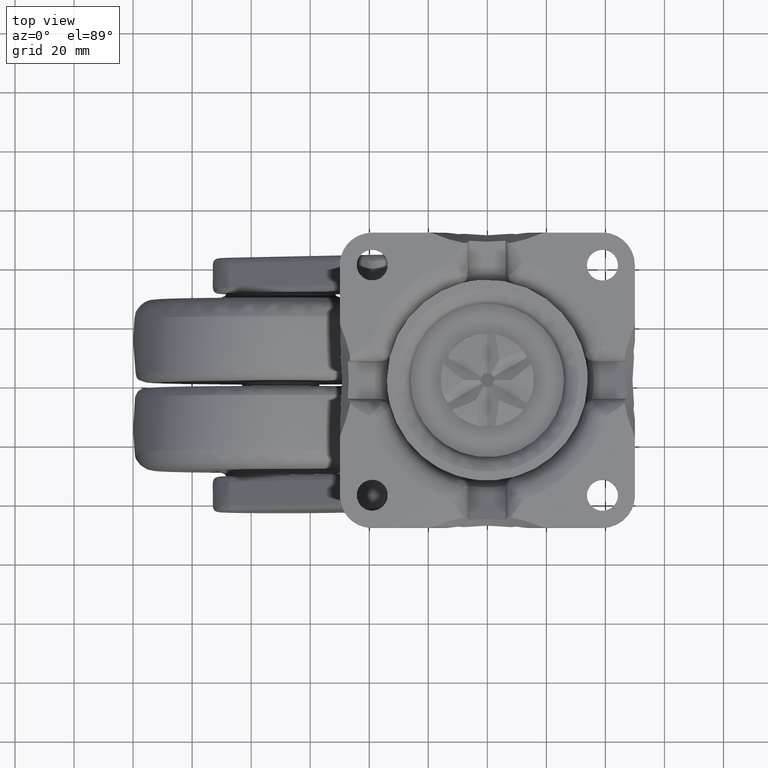
[diagram: clean part render]
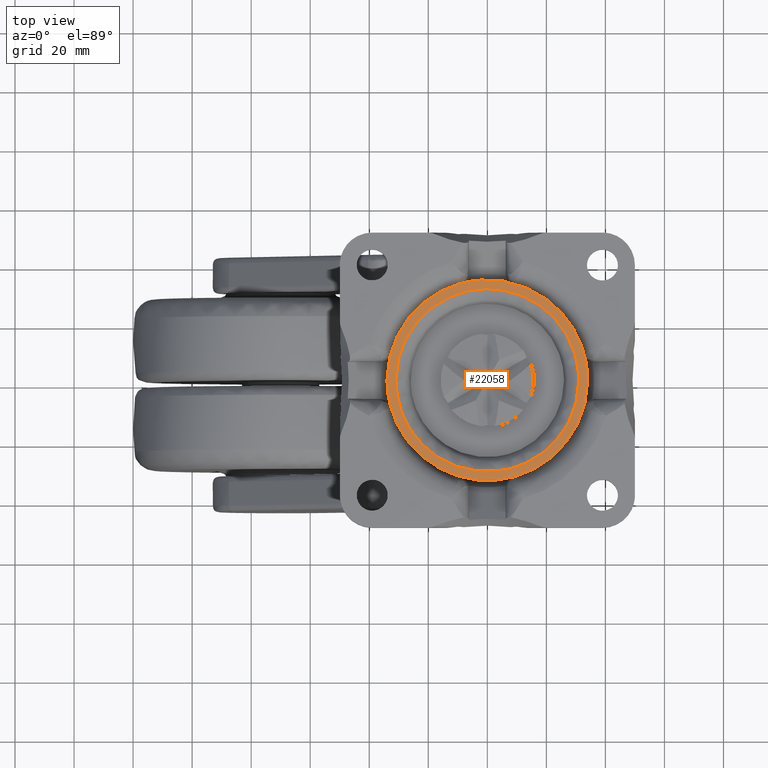
[diagram: same view with one face highlighted and labeled with its STEP entity id]
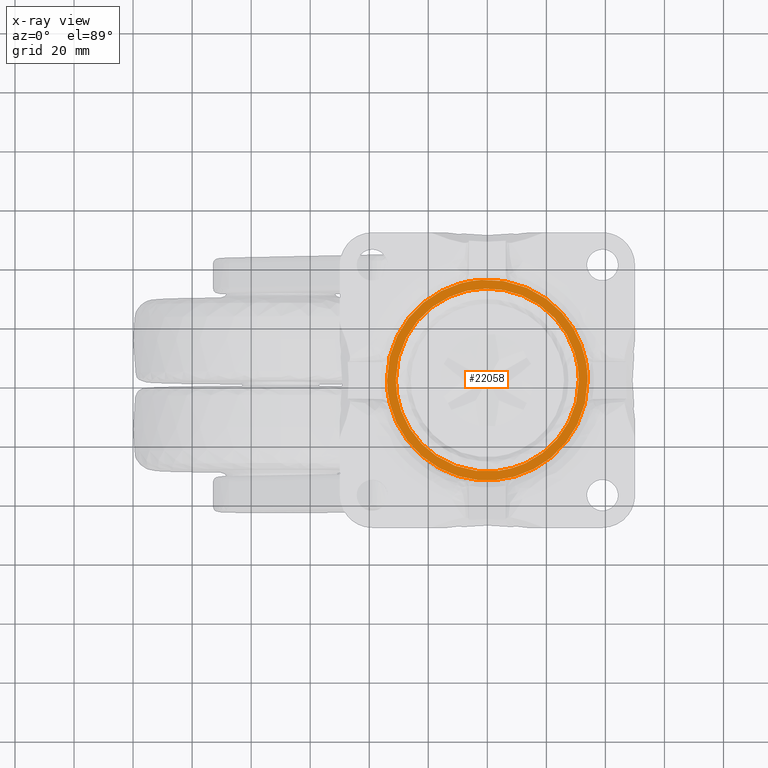
[diagram: x-ray of the same camera — body ghosted, the highlighted face saturated]
A machine part, top view. The second image highlights one B-rep face of the part: STEP entity #22058.
The next image is the same camera in x-ray: the body ghosted, the highlighted face saturated — about 0% of this face is hidden behind the body in this view.
In plain terms, the highlighted face is a freeform B-spline surface patch.
Its self-contained STEP definition (entity closure, byte-faithful):
#20280=CARTESIAN_POINT('',(31.828892238693928,11.954983013651990,18.0));
#20281=VERTEX_POINT('',#20280);
#20287=CARTESIAN_POINT('',(34.0,0.0,18.0));
#20288=VERTEX_POINT('',#20287);
#20289=CARTESIAN_POINT('',(31.828892238693925,11.954983013651990,17.999999999999996));
#20290=CARTESIAN_POINT('',(34.0,6.174635614258880,17.999999999999996));
#20291=CARTESIAN_POINT('',(34.0,0.0,18.0));
#20299=(BOUNDED_CURVE()B_SPLINE_CURVE(2,(#20289,#20290,#20291),.UNSPECIFIED.,.F.,.U.)B_SPLINE_CURVE_WITH_KNOTS((3,3),(0.440284310422028,0.500000000000000),.UNSPECIFIED.)CURVE()GEOMETRIC_REPRESENTATION_ITEM()RATIONAL_B_SPLINE_CURVE((0.893499725379125,0.930038717863371,1.0))REPRESENTATION_ITEM(''));
#20300=EDGE_CURVE('',#20281,#20288,#20299,.T.);
#20302=CARTESIAN_POINT('',(-34.0,0.0,18.0));
#20303=VERTEX_POINT('',#20302);
#20304=CARTESIAN_POINT('',(34.0,0.0,18.0));
#20305=CARTESIAN_POINT('',(34.000000000000007,-34.000000000000007,18.000000000000007));
#20306=CARTESIAN_POINT('',(0.0,-34.0,18.0));
#20307=CARTESIAN_POINT('',(-34.000000000000007,-34.000000000000007,18.000000000000007));
#20308=CARTESIAN_POINT('',(-34.0,0.0,18.0));
#20316=(BOUNDED_CURVE()B_SPLINE_CURVE(2,(#20304,#20305,#20306,#20307,#20308),.UNSPECIFIED.,.F.,.U.)B_SPLINE_CURVE_WITH_KNOTS((3,2,3),(0.500000000000000,0.750000000000000,1.0),.UNSPECIFIED.)CURVE()GEOMETRIC_REPRESENTATION_ITEM()RATIONAL_B_SPLINE_CURVE((1.0,0.707106781186548,1.0,0.707106781186548,1.0))REPRESENTATION_ITEM(''));
#20317=EDGE_CURVE('',#20288,#20303,#20316,.T.);
#20319=CARTESIAN_POINT('',(-2.075597135772376,33.936586400625679,18.0));
#20320=VERTEX_POINT('',#20319);
#20321=CARTESIAN_POINT('',(-34.0,0.0,18.0));
#20322=CARTESIAN_POINT('',(-33.999999999999993,31.984056515545902,17.999999999999996));
#20323=CARTESIAN_POINT('',(-2.075597135772376,33.936586400625679,17.999999999999996));
#20331=(BOUNDED_CURVE()B_SPLINE_CURVE(2,(#20321,#20322,#20323),.UNSPECIFIED.,.F.,.U.)B_SPLINE_CURVE_WITH_KNOTS((3,3),(0.0,0.239333232774291),.UNSPECIFIED.)CURVE()GEOMETRIC_REPRESENTATION_ITEM()RATIONAL_B_SPLINE_CURVE((1.0,0.719603676334835,0.976072621476153))REPRESENTATION_ITEM(''));
#20332=EDGE_CURVE('',#20303,#20320,#20331,.T.);
#20438=CARTESIAN_POINT('',(-2.075597135772376,33.936586400625679,17.999999999999996));
#20439=CARTESIAN_POINT('',(-1.038767273353231,34.0,18.000000000000007));
#20440=CARTESIAN_POINT('',(0.0,34.0,18.0));
#20441=CARTESIAN_POINT('',(23.548748474010292,34.0,18.000000000000007));
#20442=CARTESIAN_POINT('',(31.828892238693925,11.954983013651990,17.999999999999996));
#20450=(BOUNDED_CURVE()B_SPLINE_CURVE(2,(#20438,#20439,#20440,#20441,#20442),.UNSPECIFIED.,.F.,.U.)B_SPLINE_CURVE_WITH_KNOTS((3,2,3),(0.239333232774291,0.250000000000000,0.440284310422028),.UNSPECIFIED.)CURVE()GEOMETRIC_REPRESENTATION_ITEM()RATIONAL_B_SPLINE_CURVE((0.976072621476153,0.987503104851713,1.0,0.777068063323176,0.893499725379125))REPRESENTATION_ITEM(''));
#20451=EDGE_CURVE('',#20320,#20281,#20450,.T.);
#20905=CARTESIAN_POINT('',(3.579391109195953,-30.792660797294129,18.0));
#20906=VERTEX_POINT('',#20905);
#20920=CARTESIAN_POINT('',(31.0,0.0,18.0));
#20921=VERTEX_POINT('',#20920);
#20922=CARTESIAN_POINT('',(31.0,0.0,18.0));
#20923=CARTESIAN_POINT('',(31.000000000000007,-27.605242724490239,18.0));
#20924=CARTESIAN_POINT('',(3.579391109195953,-30.792660797294126,17.999999999999996));
#20932=(BOUNDED_CURVE()B_SPLINE_CURVE(2,(#20922,#20923,#20924),.UNSPECIFIED.,.F.,.U.)B_SPLINE_CURVE_WITH_KNOTS((3,3),(0.0,0.229999999993031),.UNSPECIFIED.)CURVE()GEOMETRIC_REPRESENTATION_ITEM()RATIONAL_B_SPLINE_CURVE((1.0,0.730538238699789,0.956886118176942))REPRESENTATION_ITEM(''));
#20933=EDGE_CURVE('',#20921,#20906,#20932,.T.);
#20935=CARTESIAN_POINT('',(-30.999999999931170,7.500171E-016,18.0));
#20936=VERTEX_POINT('',#20935);
#20937=CARTESIAN_POINT('',(-30.999999999931170,7.500171E-016,18.0));
#20938=CARTESIAN_POINT('',(-31.000000000000007,31.000000000000007,18.000000000000007));
#20939=CARTESIAN_POINT('',(0.0,31.0,18.0));
#20940=CARTESIAN_POINT('',(31.000000000000007,31.000000000000007,18.000000000000007));
#20941=CARTESIAN_POINT('',(31.0,0.0,18.0));
#20949=(BOUNDED_CURVE()B_SPLINE_CURVE(2,(#20937,#20938,#20939,#20940,#20941),.UNSPECIFIED.,.F.,.U.)B_SPLINE_CURVE_WITH_KNOTS((3,2,3),(0.500000000000000,0.750000000000000,1.0),.UNSPECIFIED.)CURVE()GEOMETRIC_REPRESENTATION_ITEM()RATIONAL_B_SPLINE_CURVE((1.0,0.707106781186548,1.0,0.707106781186548,1.0))REPRESENTATION_ITEM(''));
#20950=EDGE_CURVE('',#20936,#20921,#20949,.T.);
#21024=CARTESIAN_POINT('',(3.579391109195953,-30.792660797294129,17.999999999999996));
#21025=CARTESIAN_POINT('',(1.795700702674951,-31.000000000000004,18.000000000000004));
#21026=CARTESIAN_POINT('',(0.0,-31.0,18.0));
#21027=CARTESIAN_POINT('',(-31.000000000000007,-31.000000000000007,18.000000000000007));
#21028=CARTESIAN_POINT('',(-30.999999999931170,7.500171E-016,18.0));
#21036=(BOUNDED_CURVE()B_SPLINE_CURVE(2,(#21024,#21025,#21026,#21027,#21028),.UNSPECIFIED.,.F.,.U.)B_SPLINE_CURVE_WITH_KNOTS((3,2,3),(0.229999999993031,0.250000000000000,0.500000000000000),.UNSPECIFIED.)CURVE()GEOMETRIC_REPRESENTATION_ITEM()RATIONAL_B_SPLINE_CURVE((0.956886118176942,0.976568542486759,1.0,0.707106781186548,1.0))REPRESENTATION_ITEM(''));
#21037=EDGE_CURVE('',#20906,#20936,#21036,.T.);
#22042=CARTESIAN_POINT('',(-37.396599868202799,-37.396303962698482,18.0));
#22043=CARTESIAN_POINT('',(37.396601692104937,-37.396303962698482,18.0));
#22044=CARTESIAN_POINT('',(-37.396599868202799,37.390381752481943,18.0));
#22045=CARTESIAN_POINT('',(37.396601692104937,37.390381752481943,18.0));
#22046=B_SPLINE_SURFACE_WITH_KNOTS('',1,1,((#22042,#22044),(#22043,#22045)),.UNSPECIFIED.,.F.,.F.,.U.,(2,2),(2,2),(0.0,74.793201560307736),(0.0,74.786685715180425),.UNSPECIFIED.);
#22047=ORIENTED_EDGE('',*,*,#20317,.F.);
#22048=ORIENTED_EDGE('',*,*,#20300,.F.);
#22049=ORIENTED_EDGE('',*,*,#20451,.F.);
#22050=ORIENTED_EDGE('',*,*,#20332,.F.);
#22051=EDGE_LOOP('',(#22047,#22048,#22049,#22050));
#22052=FACE_OUTER_BOUND('',#22051,.T.);
#22053=ORIENTED_EDGE('',*,*,#20950,.T.);
#22054=ORIENTED_EDGE('',*,*,#20933,.T.);
#22055=ORIENTED_EDGE('',*,*,#21037,.T.);
#22056=EDGE_LOOP('',(#22053,#22054,#22055));
#22057=FACE_BOUND('',#22056,.T.);
#22058=ADVANCED_FACE('',(#22052,#22057),#22046,.T.);